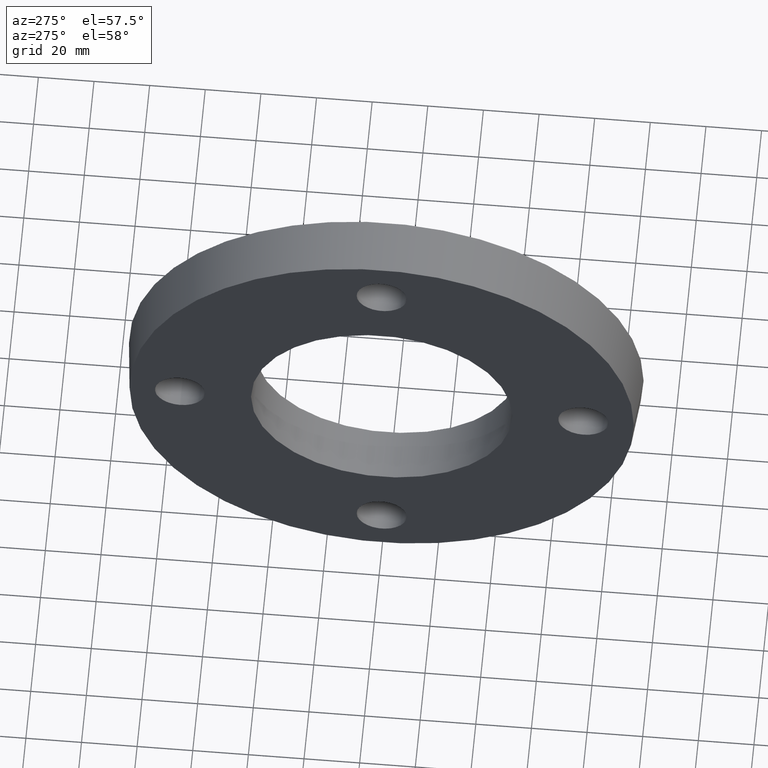
[diagram: clean part render]
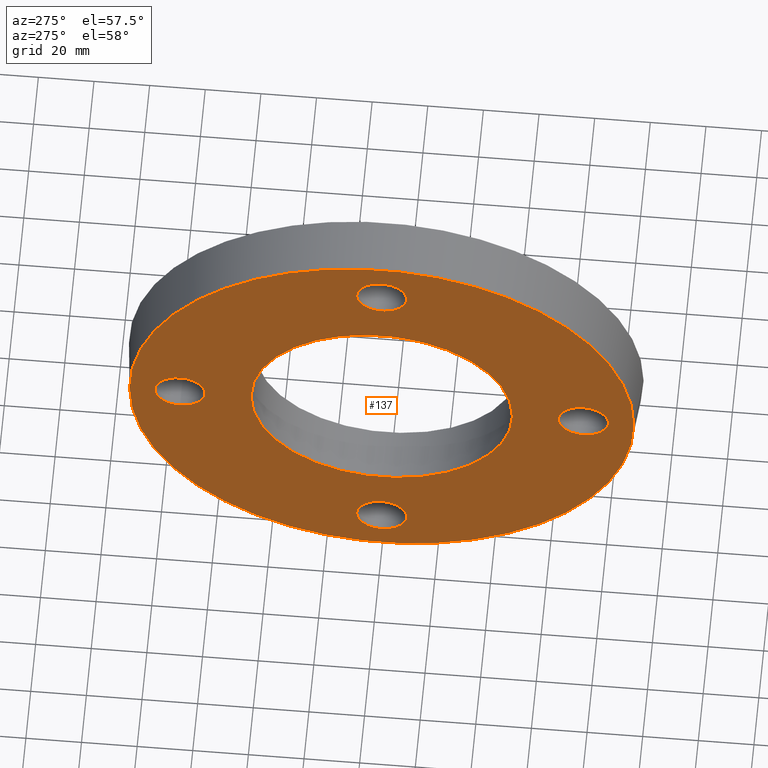
[diagram: same view with one face highlighted and labeled with its STEP entity id]
A machine part, auxiliary view. The second image highlights one B-rep face of the part: STEP entity #137.
In plain terms, the highlighted planar face has unit normal (-1, 0, 0).
Its self-contained STEP definition (entity closure, byte-faithful):
#17=PLANE('',#158);
#28=FACE_BOUND('',#59,.T.);
#29=FACE_BOUND('',#60,.T.);
#30=FACE_BOUND('',#61,.T.);
#31=FACE_BOUND('',#62,.T.);
#32=FACE_BOUND('',#63,.T.);
#40=FACE_OUTER_BOUND('',#58,.T.);
#58=EDGE_LOOP('',(#118));
#59=EDGE_LOOP('',(#119));
#60=EDGE_LOOP('',(#120));
#61=EDGE_LOOP('',(#121));
#62=EDGE_LOOP('',(#122));
#63=EDGE_LOOP('',(#123));
#66=CIRCLE('',#142,9.);
#68=CIRCLE('',#145,9.);
#70=CIRCLE('',#148,9.);
#72=CIRCLE('',#151,9.);
#76=CIRCLE('',#157,90.65);
#77=CIRCLE('',#159,47.);
#78=VERTEX_POINT('',#205);
#80=VERTEX_POINT('',#210);
#82=VERTEX_POINT('',#215);
#84=VERTEX_POINT('',#220);
#88=VERTEX_POINT('',#230);
#89=VERTEX_POINT('',#233);
#90=EDGE_CURVE('',#78,#78,#66,.T.);
#92=EDGE_CURVE('',#80,#80,#68,.T.);
#94=EDGE_CURVE('',#82,#82,#70,.T.);
#96=EDGE_CURVE('',#84,#84,#72,.T.);
#100=EDGE_CURVE('',#88,#88,#76,.T.);
#101=EDGE_CURVE('',#89,#89,#77,.T.);
#118=ORIENTED_EDGE('',*,*,#100,.T.);
#119=ORIENTED_EDGE('',*,*,#90,.T.);
#120=ORIENTED_EDGE('',*,*,#92,.T.);
#121=ORIENTED_EDGE('',*,*,#94,.T.);
#122=ORIENTED_EDGE('',*,*,#96,.T.);
#123=ORIENTED_EDGE('',*,*,#101,.F.);
#137=ADVANCED_FACE('',(#40,#28,#29,#30,#31,#32),#17,.T.);
#142=AXIS2_PLACEMENT_3D('',#206,#165,#166);
#145=AXIS2_PLACEMENT_3D('',#211,#171,#172);
#148=AXIS2_PLACEMENT_3D('',#216,#177,#178);
#151=AXIS2_PLACEMENT_3D('',#221,#183,#184);
#157=AXIS2_PLACEMENT_3D('',#231,#195,#196);
#158=AXIS2_PLACEMENT_3D('',#232,#197,#198);
#159=AXIS2_PLACEMENT_3D('',#234,#199,#200);
#165=DIRECTION('center_axis',(1.,0.,0.));
#166=DIRECTION('ref_axis',(0.,-1.,-1.83697019872103E-16));
#171=DIRECTION('center_axis',(1.,0.,0.));
#172=DIRECTION('ref_axis',(0.,1.22464679914735E-16,-1.));
#177=DIRECTION('center_axis',(1.,0.,0.));
#178=DIRECTION('ref_axis',(0.,1.,6.12323399573677E-17));
#183=DIRECTION('center_axis',(1.,0.,0.));
#184=DIRECTION('ref_axis',(0.,0.,1.));
#195=DIRECTION('center_axis',(-1.,0.,0.));
#196=DIRECTION('ref_axis',(0.,0.,1.));
#197=DIRECTION('center_axis',(-1.,0.,0.));
#198=DIRECTION('ref_axis',(0.,0.,1.));
#199=DIRECTION('center_axis',(-1.,0.,0.));
#200=DIRECTION('ref_axis',(0.,0.,1.));
#205=CARTESIAN_POINT('',(-9.5,8.99999999999999,72.5));
#206=CARTESIAN_POINT('Origin',(-9.5,-1.33180339407275E-14,72.5));
#210=CARTESIAN_POINT('',(-9.5,-72.5,8.99999999999999));
#211=CARTESIAN_POINT('Origin',(-9.5,-72.5,-8.87868929381831E-15));
#215=CARTESIAN_POINT('',(-9.5,-9.,-72.5));
#216=CARTESIAN_POINT('Origin',(-9.5,4.43934464690916E-15,-72.5));
#220=CARTESIAN_POINT('',(-9.5,72.5,-9.));
#221=CARTESIAN_POINT('Origin',(-9.5,72.5,0.));
#230=CARTESIAN_POINT('',(-9.49999999999999,-90.65,0.));
#231=CARTESIAN_POINT('Origin',(-9.49999999999999,0.,0.));
#232=CARTESIAN_POINT('Origin',(-9.5,-47.,0.));
#233=CARTESIAN_POINT('',(-9.5,-47.,0.));
#234=CARTESIAN_POINT('Origin',(-9.5,0.,0.));